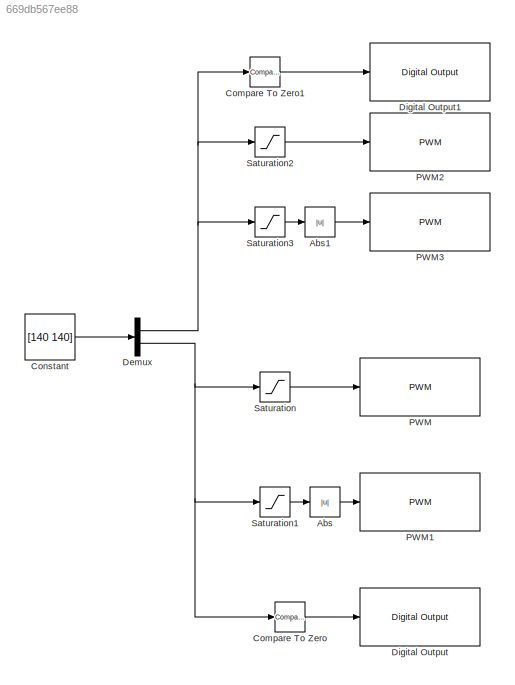
MODEL slx_669db567ee88
KIND model
CONFIG AbsTol = auto
CONFIG EnableMultiTasking = on
CONFIG FixedStep = 0.01
CONFIG MaxStep = auto
CONFIG MinStep = auto
CONFIG RelTol = 1e-3
CONFIG SampleTimeConstraint = Unconstrained
CONFIG SolverName = FixedStepAuto
CONFIG StartTime = 0.0
CONFIG StopTime = inf
BLOCK [Abs] Abs
  SaturateOnIntegerOverflow = off
BLOCK [Abs] Abs1
  SaturateOnIntegerOverflow = off
BLOCK [Reference] Compare To Zero  REF=simulink/Logic and Bit
Operations/Compare
To Zero
  SourceBlock = simulink/Logic and Bit\nOperations/Compare\nTo Zero
  SourceType = Compare To Zero
BLOCK [Reference] Compare To Zero1  REF=simulink/Logic and Bit
Operations/Compare
To Zero
  SourceBlock = simulink/Logic and Bit\nOperations/Compare\nTo Zero
  SourceType = Compare To Zero
BLOCK [Constant] Constant
  Value = [140 140]
BLOCK [Demux] Demux
  Outputs = 2
BLOCK [Reference] Digital Output  REF=arduinolib/Digital Output
  SourceBlock = arduinolib/Digital Output
  SourceType = Arduino Digital Output
BLOCK [Reference] Digital Output1  REF=arduinolib/Digital Output
  SourceBlock = arduinolib/Digital Output
  SourceType = Arduino Digital Output
BLOCK [Reference] PWM  REF=arduinolib/PWM
  SourceBlock = arduinolib/PWM
  SourceType = Arduino PWM
BLOCK [Reference] PWM1  REF=arduinolib/PWM
  SourceBlock = arduinolib/PWM
  SourceType = Arduino PWM
BLOCK [Reference] PWM2  REF=arduinolib/PWM
  SourceBlock = arduinolib/PWM
  SourceType = Arduino PWM
BLOCK [Reference] PWM3  REF=arduinolib/PWM
  SourceBlock = arduinolib/PWM
  SourceType = Arduino PWM
BLOCK [Saturate] Saturation
  LowerLimit = 0
  UpperLimit = 255
BLOCK [Saturate] Saturation1
  LowerLimit = -255
  UpperLimit = 0
BLOCK [Saturate] Saturation2
  LowerLimit = 0
  UpperLimit = 255
BLOCK [Saturate] Saturation3
  LowerLimit = -255
  UpperLimit = 0
LINE Abs1:1 -> PWM3:1
LINE Abs:1 -> PWM1:1
LINE Compare To Zero1:1 -> Digital Output1:1
LINE Compare To Zero:1 -> Digital Output:1
LINE Constant:1 -> Demux:1
NET Demux:1 -> Compare To Zero1:1, Saturation2:1, Saturation3:1
NET Demux:2 -> Compare To Zero:1, Saturation1:1, Saturation:1
LINE Saturation1:1 -> Abs:1
LINE Saturation2:1 -> PWM2:1
LINE Saturation3:1 -> Abs1:1
LINE Saturation:1 -> PWM:1
note: NET lines group one-source signal fan-out (src -> all destinations, sorted); 1:1 wires keep LINE
